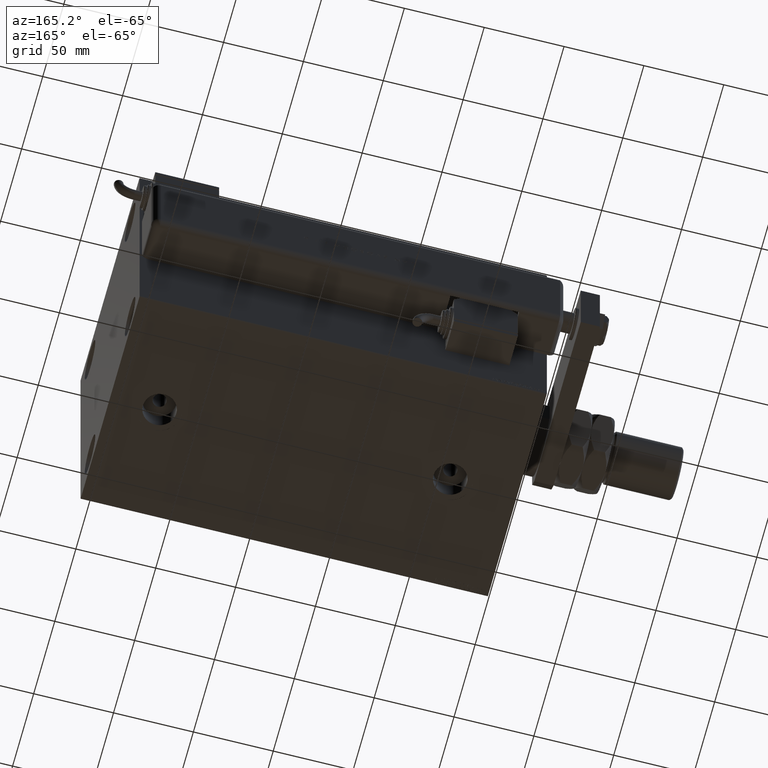
[diagram: clean part render]
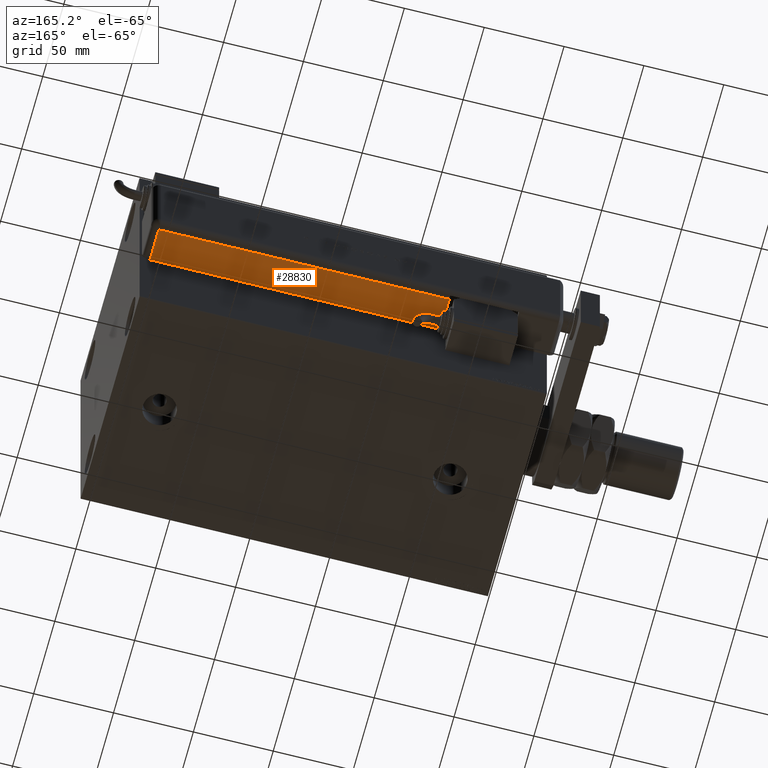
[diagram: same view with one face highlighted and labeled with its STEP entity id]
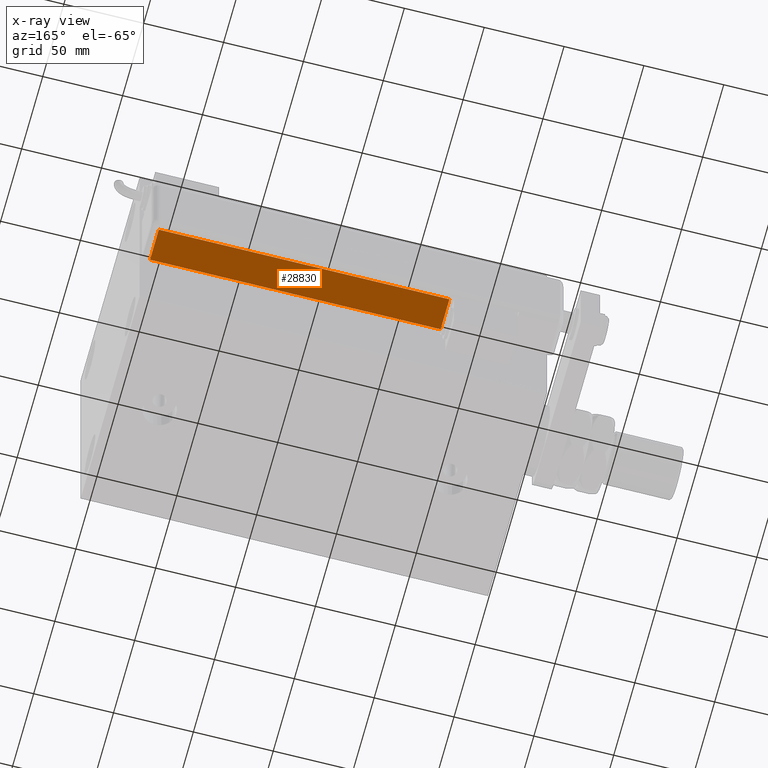
[diagram: x-ray of the same camera — body ghosted, the highlighted face saturated]
A machine part, auxiliary view. The second image highlights one B-rep face of the part: STEP entity #28830.
The next image is the same camera in x-ray: the body ghosted, the highlighted face saturated — about 0% of this face is hidden behind the body in this view.
In plain terms, the highlighted planar face has unit normal (0, 0, 1).
Its self-contained STEP definition (entity closure, byte-faithful):
#1525 = CARTESIAN_POINT ( 'NONE',  ( -28.99999999999999645, -9.421223957302265857E-15, 5.000000000000004441 ) ) ;
#3907 = FACE_OUTER_BOUND ( 'NONE', #44345, .T. ) ;
#4857 = EDGE_CURVE ( 'NONE', #25609, #54504, #13267, .T. ) ;
#6366 = CARTESIAN_POINT ( 'NONE',  ( -28.99999999999999645, -1.040834085586084257E-14, 5.000000000000004441 ) ) ;
#8318 = CARTESIAN_POINT ( 'NONE',  ( -28.99999999999999645, -9.421223957302265857E-15, 255.0000000000000000 ) ) ;
#9594 = ORIENTED_EDGE ( 'NONE', *, *, #21374, .T. ) ;
#10416 = AXIS2_PLACEMENT_3D ( 'NONE', #56801, #55563, #12939 ) ;
#12939 = DIRECTION ( 'NONE',  ( -0.000000000000000000, 0.000000000000000000, -1.000000000000000000 ) ) ;
#13233 = EDGE_CURVE ( 'NONE', #54504, #53109, #50001, .T. ) ;
#13267 = LINE ( 'NONE', #51221, #30913 ) ;
#13312 = CARTESIAN_POINT ( 'NONE',  ( -28.99999999999999645, 20.79999999999998295, 255.0000000000000000 ) ) ;
#21283 = LINE ( 'NONE', #6366, #37208 ) ;
#21374 = EDGE_CURVE ( 'NONE', #33622, #53109, #21283, .T. ) ;
#23518 = PLANE ( 'NONE',  #10416 ) ;
#24225 = ORIENTED_EDGE ( 'NONE', *, *, #4857, .F. ) ;
#25177 = VECTOR ( 'NONE', #52195, 1000.000000000000000 ) ;
#25609 = VERTEX_POINT ( 'NONE', #26849 ) ;
#26342 = EDGE_CURVE ( 'NONE', #25609, #33622, #51882, .T. ) ;
#26849 = CARTESIAN_POINT ( 'NONE',  ( -28.99999999999999645, 20.79999999999998295, 187.0000000000000000 ) ) ;
#28830 = ADVANCED_FACE ( 'NONE', ( #3907 ), #23518, .F. ) ;
#30913 = VECTOR ( 'NONE', #56207, 1000.000000000000000 ) ;
#33622 = VERTEX_POINT ( 'NONE', #53510 ) ;
#35379 = ORIENTED_EDGE ( 'NONE', *, *, #26342, .T. ) ;
#37208 = VECTOR ( 'NONE', #40272, 1000.000000000000000 ) ;
#39287 = ORIENTED_EDGE ( 'NONE', *, *, #13233, .F. ) ;
#40272 = DIRECTION ( 'NONE',  ( 0.000000000000000000, -1.000000000000000000, 0.000000000000000000 ) ) ;
#44345 = EDGE_LOOP ( 'NONE', ( #39287, #24225, #35379, #9594 ) ) ;
#45965 = DIRECTION ( 'NONE',  ( -0.000000000000000000, -0.000000000000000000, -1.000000000000000000 ) ) ;
#50001 = LINE ( 'NONE', #8318, #55922 ) ;
#51221 = CARTESIAN_POINT ( 'NONE',  ( -28.99999999999999645, 22.99999999999998934, 187.0000000000000000 ) ) ;
#51882 = LINE ( 'NONE', #13312, #25177 ) ;
#52195 = DIRECTION ( 'NONE',  ( 0.000000000000000000, 0.000000000000000000, -1.000000000000000000 ) ) ;
#53109 = VERTEX_POINT ( 'NONE', #1525 ) ;
#53510 = CARTESIAN_POINT ( 'NONE',  ( -28.99999999999999645, 20.79999999999998295, 5.000000000000004441 ) ) ;
#54504 = VERTEX_POINT ( 'NONE', #57396 ) ;
#55563 = DIRECTION ( 'NONE',  ( 1.000000000000000000, 0.000000000000000000, -0.000000000000000000 ) ) ;
#55922 = VECTOR ( 'NONE', #45965, 1000.000000000000000 ) ;
#56207 = DIRECTION ( 'NONE',  ( 0.000000000000000000, -1.000000000000000000, 0.000000000000000000 ) ) ;
#56801 = CARTESIAN_POINT ( 'NONE',  ( -28.99999999999999645, 25.79999999999998295, 255.0000000000000000 ) ) ;
#57396 = CARTESIAN_POINT ( 'NONE',  ( -28.99999999999999645, -9.421223957302264279E-15, 187.0000000000000000 ) ) ;